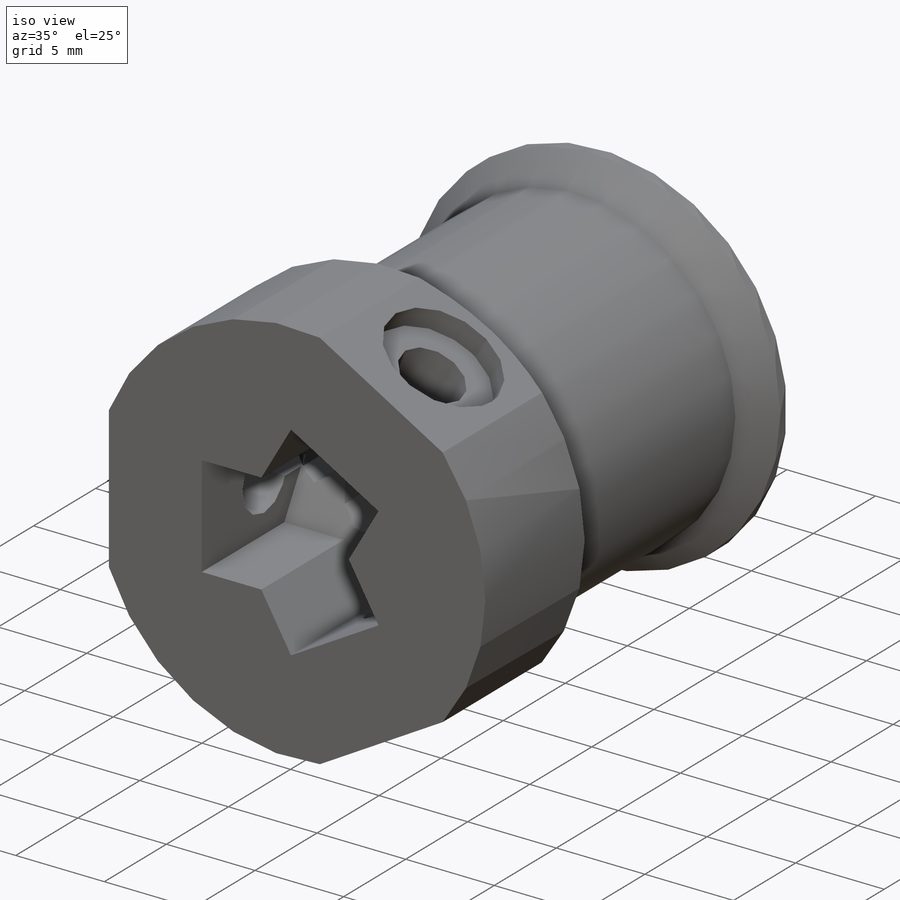
[diagram: iso view]
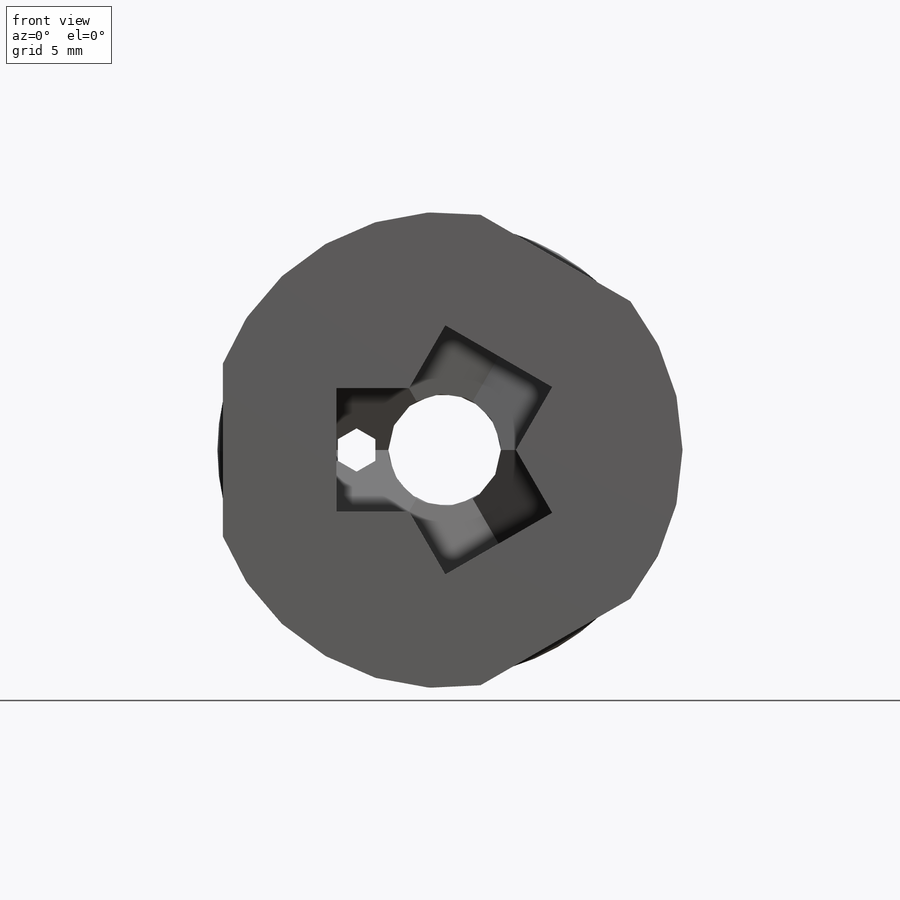
[diagram: front view]
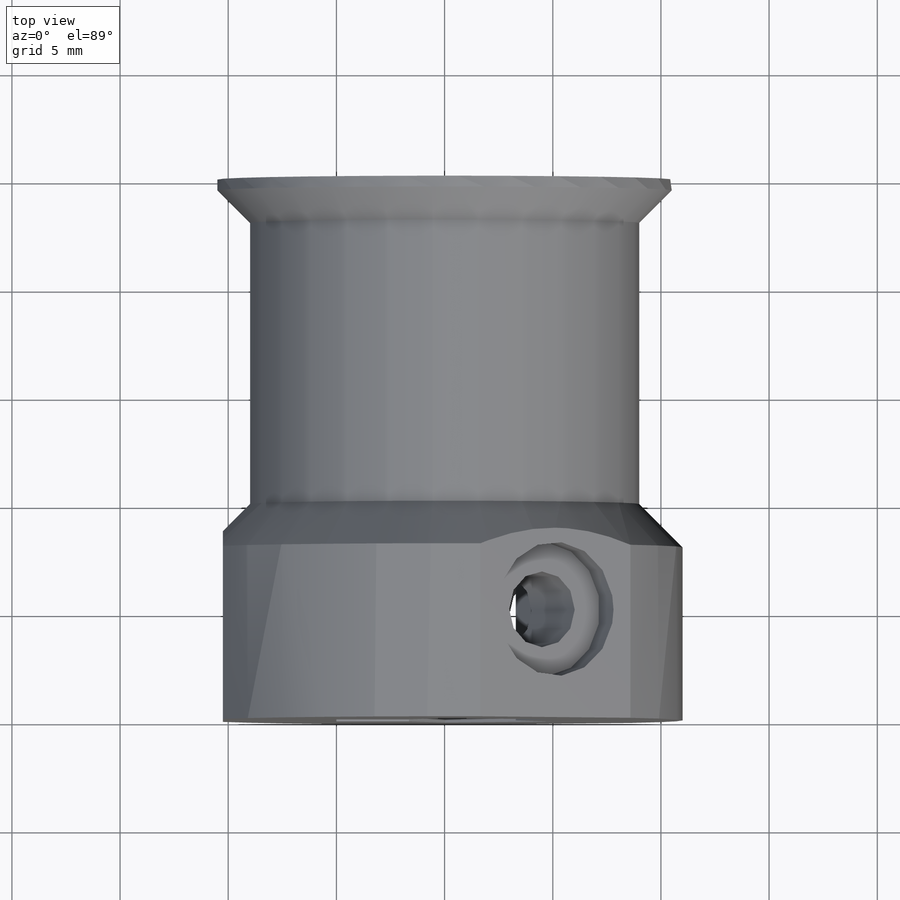
[diagram: top view]
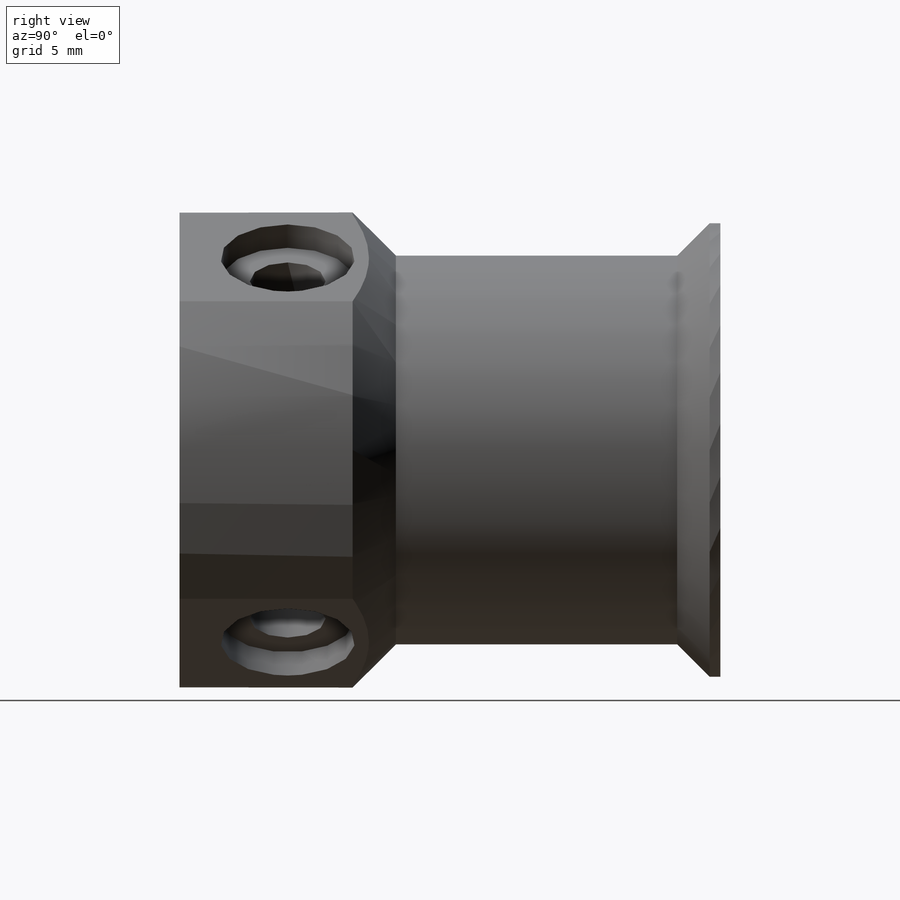
[diagram: right view]
SOLIDWORKS PART (.sldprt)
format: sldprt  version: not decoded by parser v0  size: 389,120 bytes
history: native  units: mm
features: sketch x15, cut_extrude x10, extrude x4, plane x3, chamfer x2, material x1, pattern_circular x1, mirror x1 (+11 scaffold rows collapsed)
feature tree (48):
  scaffold x11  (default folders/planes/origin — collapsed)
  material  "Material <not specified>"
  sketch  "Sketch1"  dims[D1=22.0mm]
  extrude  "Boss-Base Flange"  Depth=2mm
  sketch  "Sketch2"
  extrude  "Boss-Spectra Spool"  Depth=13mm
  sketch  "Sketch3"
  extrude  "Boss-Top Flange"  Depth=2mm
  sketch  "Sketch4"
  extrude  "Boss-Top Extension"  Depth=8mm
  sketch  "Sketch5"  dims[D1=5.2mm]
  cut_extrude  "Cut-Stepper Shaft"  [1 undecoded]
  plane  "Plane1"
  sketch  "Sketch7"  dims[D1=3.5mm D2=3.0mm]
  cut_extrude  "Cut-Set Screw Hole"  [1 undecoded]
  sketch  "Sketch8"  dims[D1=6.2mm]
  cut_extrude  "Cut-Screw Head Slot"  Depth=2mm
  sketch  "Sketch6"  dims[D1=8.0mm]
  cut_extrude  "Cut-Flaten"  [1 undecoded]
  sketch  "Sketch10"  dims[D1=5.7mm]
  cut_extrude  "Cut-Nut Hole"  Depth=5mm
  sketch  "Sketch11"
  cut_extrude  "Cut-Nut Slot"  [1 undecoded]
  pattern_circular  "CirPattern1"  Count=3 Angle=360deg
  sketch  "Sketch13"  dims[D1=2.0mm D2=0.6mm]
  cut_extrude  "Cut-Thread Hole"  [1 undecoded]
  sketch  "Sketch14"
  plane  "Plane2"
  sketch  "Sketch15"  dims[D1=1.0mm D2=1.5mm]
  cut_extrude  "Cut-Extrude8"  [1 undecoded]
  chamfer  "Chamfer1"  Distance=1mm Angle=45deg
  plane  "Plane3"  Offset=8.5mm
  mirror  "Mirror1"
  chamfer  "Chamfer3"  Distance=0.3mm Angle=60deg
  sketch  "Sketch16"  dims[D1=0.5mm]
  cut_extrude  "Cut-Truncate Base"  Depth=5mm
  cut_extrude  "Cut-Extrude9"  [1 undecoded]
  sketch  "Sketch8<2>"  dims[D1=1.0mm]
decode coverage: 20 of 33 modeling features carry decoded parameters
note: 7 parameter values undecoded
summary: no parameter record found for 7 features
note: suppression state not decoded; provenance and decode notes live in map.json
